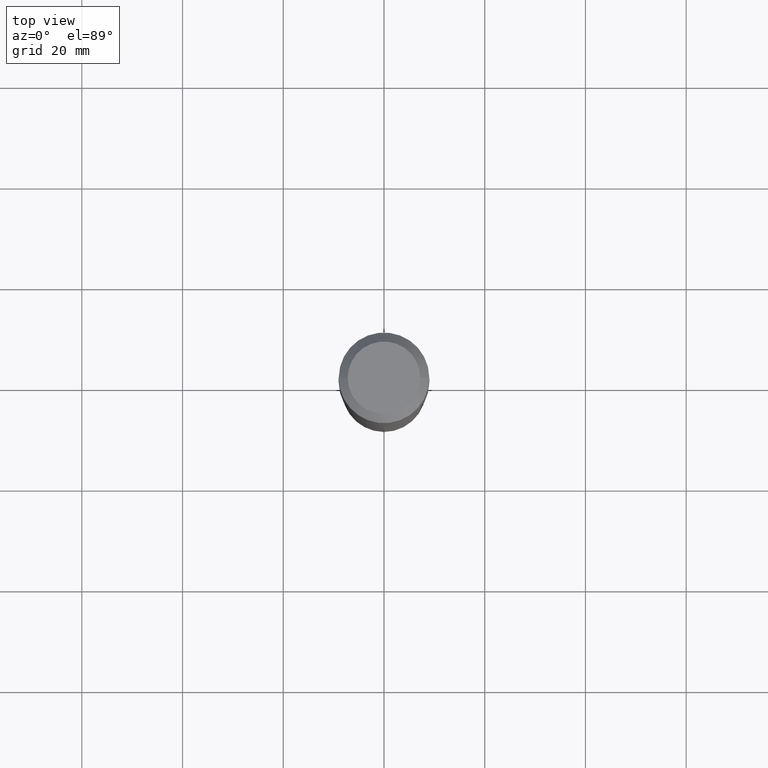
[diagram: clean part render]
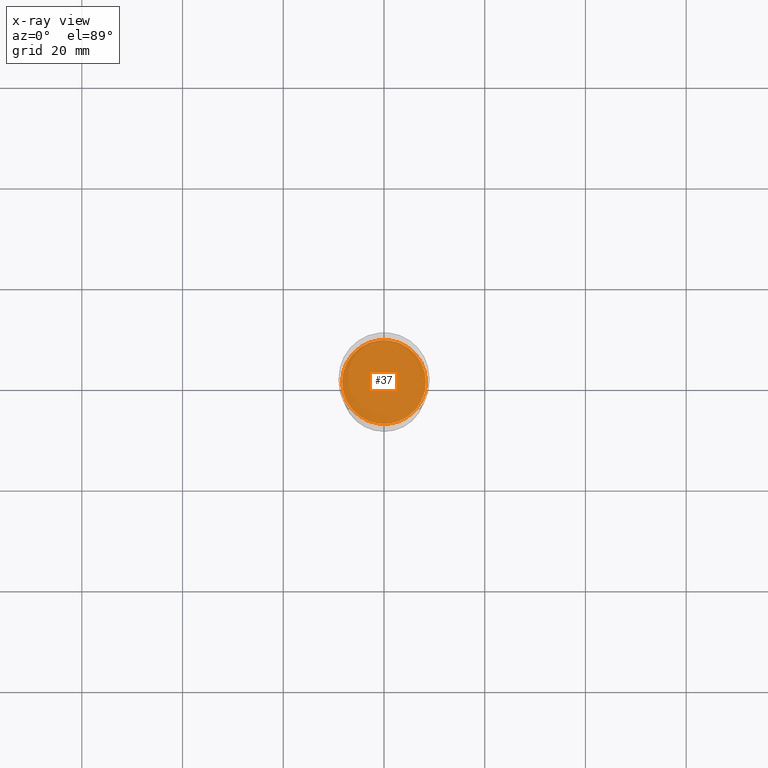
[diagram: x-ray — body ghosted, one internal face saturated and labeled with its STEP entity id]
A machine part, top view, then the same camera in x-ray: the body is ghosted and one INTERNAL B-rep face — a face not visible from any outside direction — is saturated and labeled: STEP entity #37.
In plain terms, the highlighted planar face has unit normal (-0, 0, 1).
Its self-contained STEP definition (entity closure, byte-faithful):
#15 = DIRECTION ( 'NONE',  ( 1.000000000000000000, -6.982962677686268288E-15, 0.000000000000000000 ) ) ;
#17 = EDGE_CURVE ( 'NONE', #112, #468, #443, .T. ) ;
#37 = ADVANCED_FACE ( 'NONE', ( #427 ), #126, .F. ) ;
#47 = DIRECTION ( 'NONE',  ( -2.445468806185136597E-29, 3.491481338843145583E-15, 1.000000000000000000 ) ) ;
#48 = CIRCLE ( 'NONE', #380, 0.3276000000000000023 ) ;
#55 = ORIENTED_EDGE ( 'NONE', *, *, #17, .F. ) ;
#101 = EDGE_CURVE ( 'NONE', #468, #112, #48, .T. ) ;
#112 = VERTEX_POINT ( 'NONE', #447 ) ;
#115 = AXIS2_PLACEMENT_3D ( 'NONE', #274, #47, #131 ) ;
#126 = PLANE ( 'NONE',  #359 ) ;
#131 = DIRECTION ( 'NONE',  ( 1.000000000000000000, -6.982962677686268288E-15, 0.000000000000000000 ) ) ;
#142 = ORIENTED_EDGE ( 'NONE', *, *, #101, .F. ) ;
#157 = EDGE_LOOP ( 'NONE', ( #142, #55 ) ) ;
#202 = DIRECTION ( 'NONE',  ( 1.000000000000000000, -6.982962677686265922E-15, 4.876176775795935793E-29 ) ) ;
#204 = CARTESIAN_POINT ( 'NONE',  ( 4.814149891856059498E-29, -6.873330163646616008E-15, -1.968599999999999905 ) ) ;
#243 = CARTESIAN_POINT ( 'NONE',  ( 4.814149891856059498E-29, -6.873330163646616008E-15, -1.968599999999999905 ) ) ;
#272 = DIRECTION ( 'NONE',  ( -2.438088387897960049E-29, 3.491481338843145188E-15, 1.000000000000000000 ) ) ;
#274 = CARTESIAN_POINT ( 'NONE',  ( 4.814149891856059498E-29, -6.873330163646616008E-15, -1.968599999999999905 ) ) ;
#282 = CARTESIAN_POINT ( 'NONE',  ( 0.3276000000000000023, -9.160948736856637115E-15, -1.968599999999999905 ) ) ;
#346 = DIRECTION ( 'NONE',  ( -2.445468806185136597E-29, 3.491481338843145583E-15, 1.000000000000000000 ) ) ;
#359 = AXIS2_PLACEMENT_3D ( 'NONE', #243, #272, #202 ) ;
#380 = AXIS2_PLACEMENT_3D ( 'NONE', #204, #346, #15 ) ;
#427 = FACE_OUTER_BOUND ( 'NONE', #157, .T. ) ;
#443 = CIRCLE ( 'NONE', #115, 0.3276000000000000023 ) ;
#447 = CARTESIAN_POINT ( 'NONE',  ( -0.3276000000000000023, -4.542942934122416582E-15, -1.968599999999999905 ) ) ;
#468 = VERTEX_POINT ( 'NONE', #282 ) ;